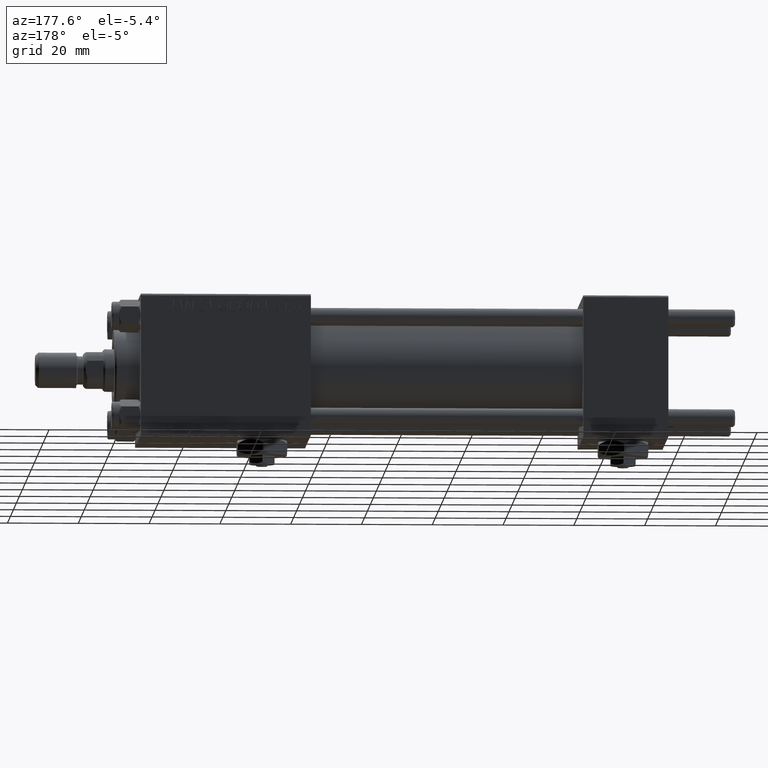
[diagram: clean part render]
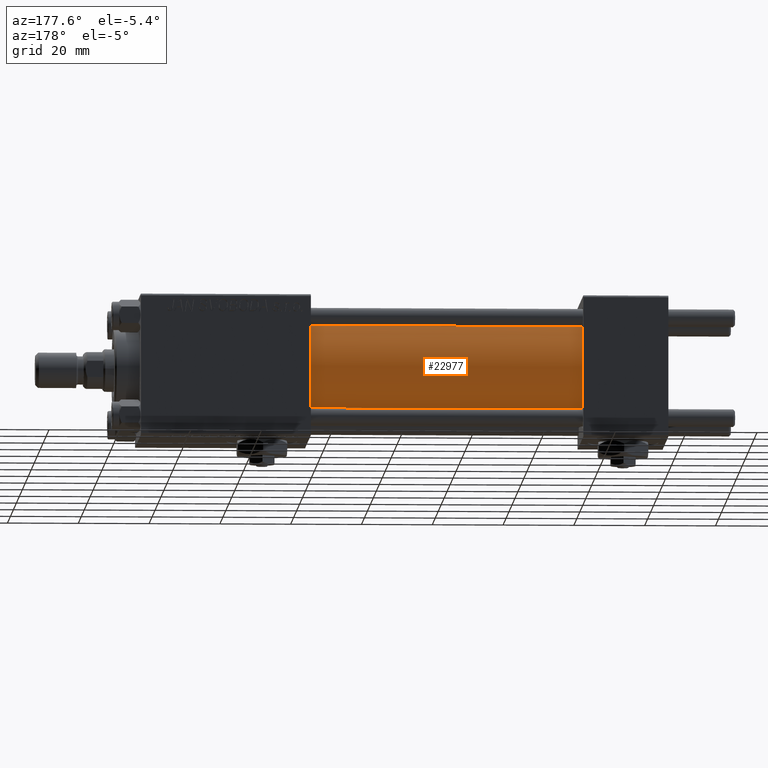
[diagram: same view with one face highlighted and labeled with its STEP entity id]
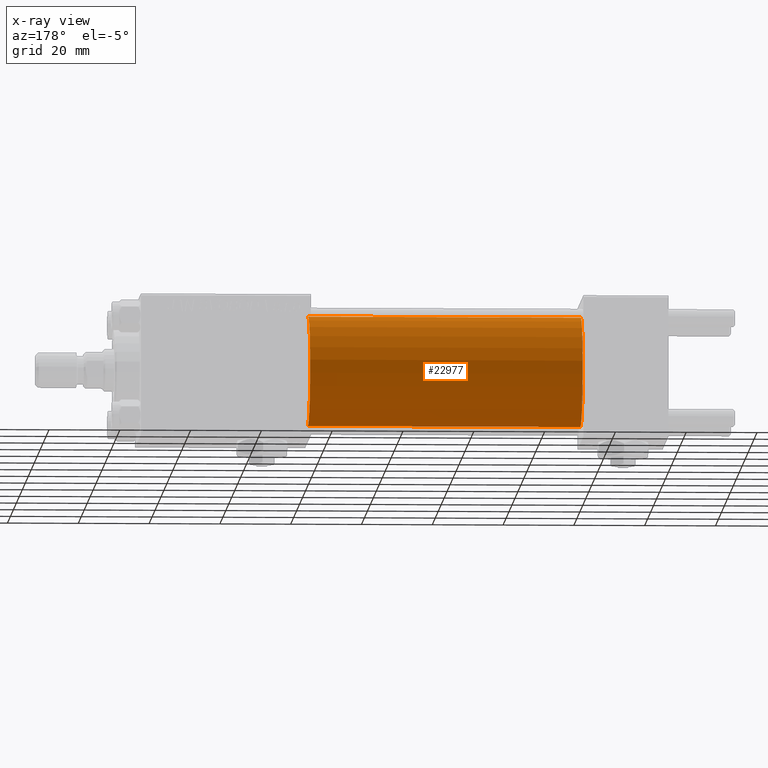
[diagram: x-ray of the same camera — body ghosted, the highlighted face saturated]
A machine part, auxiliary view. The second image highlights one B-rep face of the part: STEP entity #22977.
The next image is the same camera in x-ray: the body ghosted, the highlighted face saturated — about 0% of this face is hidden behind the body in this view.
In plain terms, the highlighted cylindrical surface (partial cylindrical patch) has radius 15.5 mm, axis along (-1, -0, -0).
Its self-contained STEP definition (entity closure, byte-faithful):
#1064 = CARTESIAN_POINT ( 'NONE',  ( 101.0000000000000000, 0.000000000000000000, 15.50000000000000000 ) ) ;
#3557 = CARTESIAN_POINT ( 'NONE',  ( 23.99999999999999289, 0.000000000000000000, 15.50000000000000000 ) ) ;
#4613 = DIRECTION ( 'NONE',  ( 0.000000000000000000, 0.000000000000000000, 1.000000000000000000 ) ) ;
#6733 = CYLINDRICAL_SURFACE ( 'NONE', #7717, 15.50000000000000000 ) ;
#6983 = EDGE_CURVE ( 'NONE', #11804, #9874, #19084, .T. ) ;
#7087 = EDGE_CURVE ( 'NONE', #46612, #23116, #27538, .T. ) ;
#7717 = AXIS2_PLACEMENT_3D ( 'NONE', #31313, #50847, #47424 ) ;
#8841 = DIRECTION ( 'NONE',  ( 0.000000000000000000, 0.000000000000000000, -1.000000000000000000 ) ) ;
#9874 = VERTEX_POINT ( 'NONE', #50330 ) ;
#10628 = AXIS2_PLACEMENT_3D ( 'NONE', #13840, #26002, #4613 ) ;
#10693 = FACE_OUTER_BOUND ( 'NONE', #18964, .T. ) ;
#11804 = VERTEX_POINT ( 'NONE', #13778 ) ;
#12526 = ORIENTED_EDGE ( 'NONE', *, *, #41971, .T. ) ;
#13063 = DIRECTION ( 'NONE',  ( 1.000000000000000000, 0.000000000000000000, 0.000000000000000000 ) ) ;
#13778 = CARTESIAN_POINT ( 'NONE',  ( 101.0000000000000000, 1.898202538678397557E-15, -15.50000000000000000 ) ) ;
#13840 = CARTESIAN_POINT ( 'NONE',  ( 23.99999999999999289, 0.000000000000000000, 0.000000000000000000 ) ) ;
#18964 = EDGE_LOOP ( 'NONE', ( #27280, #12526, #51036, #43025 ) ) ;
#19084 = CIRCLE ( 'NONE', #50314, 15.50000000000000000 ) ;
#20389 = DIRECTION ( 'NONE',  ( -1.000000000000000000, -0.000000000000000000, -0.000000000000000000 ) ) ;
#22977 = ADVANCED_FACE ( 'NONE', ( #10693 ), #6733, .T. ) ;
#23116 = VERTEX_POINT ( 'NONE', #3557 ) ;
#26002 = DIRECTION ( 'NONE',  ( 1.000000000000000000, 0.000000000000000000, 0.000000000000000000 ) ) ;
#27280 = ORIENTED_EDGE ( 'NONE', *, *, #6983, .F. ) ;
#27538 = CIRCLE ( 'NONE', #10628, 15.50000000000000000 ) ;
#29317 = LINE ( 'NONE', #29831, #43698 ) ;
#29831 = CARTESIAN_POINT ( 'NONE',  ( 101.0000000000000000, 1.898202538678397557E-15, -15.50000000000000000 ) ) ;
#31313 = CARTESIAN_POINT ( 'NONE',  ( 101.0000000000000000, 0.000000000000000000, 0.000000000000000000 ) ) ;
#32597 = CARTESIAN_POINT ( 'NONE',  ( 23.99999999999999289, 1.898202538678397557E-15, -15.50000000000000000 ) ) ;
#33061 = LINE ( 'NONE', #1064, #37620 ) ;
#33503 = EDGE_CURVE ( 'NONE', #9874, #23116, #33061, .T. ) ;
#37620 = VECTOR ( 'NONE', #20389, 1000.000000000000000 ) ;
#41341 = CARTESIAN_POINT ( 'NONE',  ( 101.0000000000000000, 0.000000000000000000, 0.000000000000000000 ) ) ;
#41971 = EDGE_CURVE ( 'NONE', #11804, #46612, #29317, .T. ) ;
#43025 = ORIENTED_EDGE ( 'NONE', *, *, #33503, .F. ) ;
#43698 = VECTOR ( 'NONE', #45176, 1000.000000000000000 ) ;
#45176 = DIRECTION ( 'NONE',  ( -1.000000000000000000, -0.000000000000000000, -0.000000000000000000 ) ) ;
#46612 = VERTEX_POINT ( 'NONE', #32597 ) ;
#47424 = DIRECTION ( 'NONE',  ( 0.000000000000000000, 0.000000000000000000, 1.000000000000000000 ) ) ;
#50314 = AXIS2_PLACEMENT_3D ( 'NONE', #41341, #13063, #8841 ) ;
#50330 = CARTESIAN_POINT ( 'NONE',  ( 101.0000000000000000, 0.000000000000000000, 15.50000000000000000 ) ) ;
#50847 = DIRECTION ( 'NONE',  ( -1.000000000000000000, -0.000000000000000000, -0.000000000000000000 ) ) ;
#51036 = ORIENTED_EDGE ( 'NONE', *, *, #7087, .T. ) ;